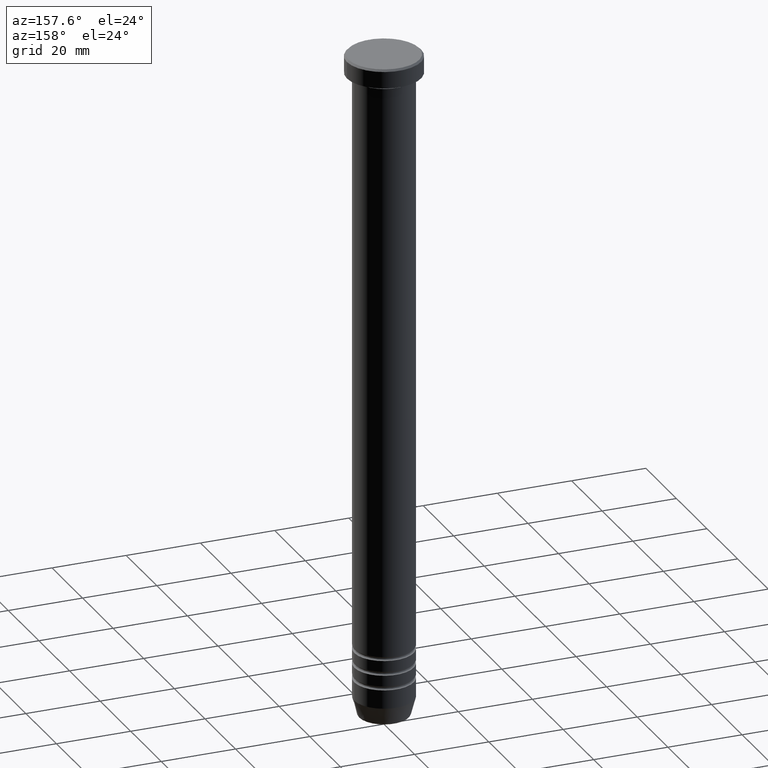
[diagram: clean part render]
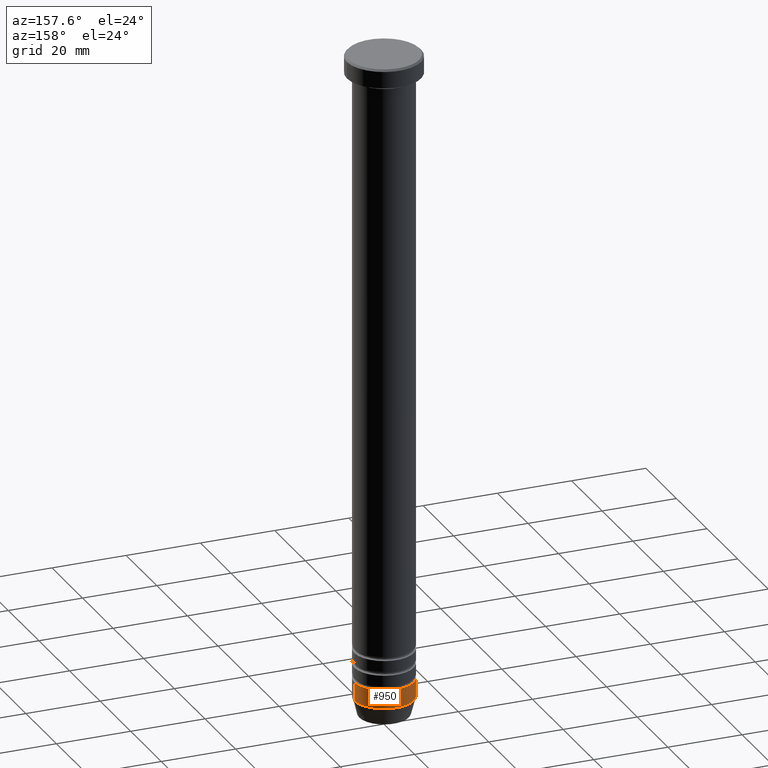
[diagram: same view with one face highlighted and labeled with its STEP entity id]
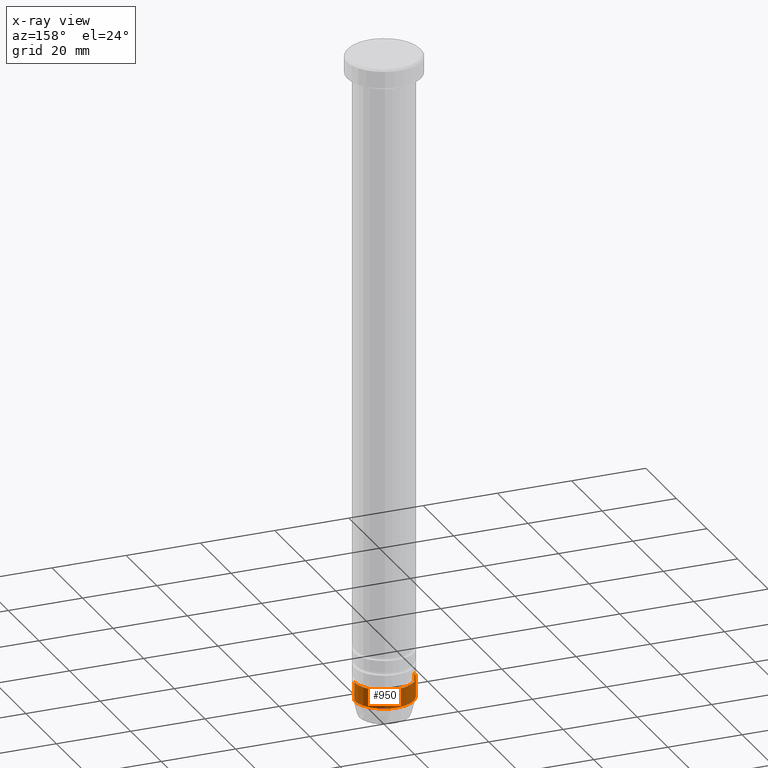
[diagram: x-ray of the same camera — body ghosted, the highlighted face saturated]
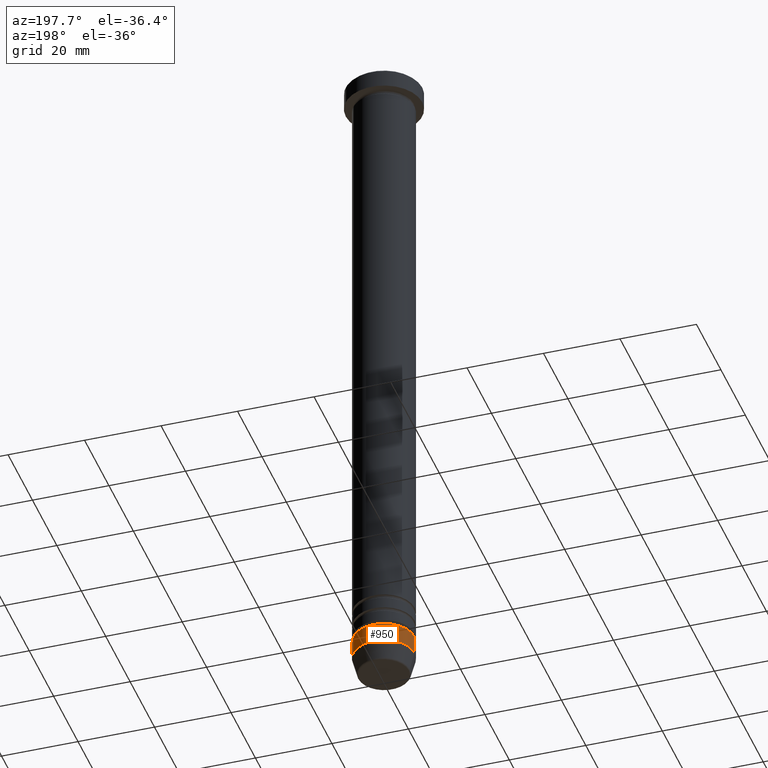
[diagram: same view with one face highlighted and labeled with its STEP entity id]
A machine part, auxiliary view. The second image highlights one B-rep face of the part: STEP entity #950.
The next image is the same camera in x-ray: the body ghosted, the highlighted face saturated — about 0% of this face is hidden behind the body in this view.
A second angle (auxiliary view) of the same face is appended — the face is thin or edge-on in the first view.
In plain terms, the highlighted cylindrical surface (edge-blend (fillet) strip) has radius 8 mm, axis along (-0, -0, 1).
Its self-contained STEP definition (entity closure, byte-faithful):
#17 = AXIS2_PLACEMENT_3D ( 'NONE', #583, #241, #818 ) ;
#26 = ORIENTED_EDGE ( 'NONE', *, *, #489, .T. ) ;
#74 = CIRCLE ( 'NONE', #17, 8.000000000000000000 ) ;
#84 = CYLINDRICAL_SURFACE ( 'NONE', #235, 8.000000000000000000 ) ;
#114 = VERTEX_POINT ( 'NONE', #407 ) ;
#122 = ORIENTED_EDGE ( 'NONE', *, *, #529, .F. ) ;
#151 = DIRECTION ( 'NONE',  ( -0.000000000000000000, -0.000000000000000000, 1.000000000000000000 ) ) ;
#235 = AXIS2_PLACEMENT_3D ( 'NONE', #325, #647, #1055 ) ;
#241 = DIRECTION ( 'NONE',  ( -0.000000000000000000, -0.000000000000000000, 1.000000000000000000 ) ) ;
#243 = CARTESIAN_POINT ( 'NONE',  ( 0.000000000000000000, 0.000000000000000000, -175.0000000000000284 ) ) ;
#278 = ORIENTED_EDGE ( 'NONE', *, *, #516, .F. ) ;
#313 = DIRECTION ( 'NONE',  ( 1.000000000000000000, 0.000000000000000000, 0.000000000000000000 ) ) ;
#325 = CARTESIAN_POINT ( 'NONE',  ( 0.000000000000000000, 0.000000000000000000, 0.000000000000000000 ) ) ;
#404 = VECTOR ( 'NONE', #151, 1000.000000000000000 ) ;
#407 = CARTESIAN_POINT ( 'NONE',  ( 8.000000000000000000, 0.000000000000000000, -175.0000000000000284 ) ) ;
#409 = DIRECTION ( 'NONE',  ( -0.000000000000000000, -0.000000000000000000, 1.000000000000000000 ) ) ;
#431 = CARTESIAN_POINT ( 'NONE',  ( 8.000000000000000000, 0.000000000000000000, -170.0000000000000000 ) ) ;
#445 = VERTEX_POINT ( 'NONE', #1042 ) ;
#489 = EDGE_CURVE ( 'NONE', #840, #445, #805, .T. ) ;
#516 = EDGE_CURVE ( 'NONE', #114, #976, #586, .T. ) ;
#529 = EDGE_CURVE ( 'NONE', #976, #445, #74, .T. ) ;
#571 = AXIS2_PLACEMENT_3D ( 'NONE', #243, #409, #313 ) ;
#583 = CARTESIAN_POINT ( 'NONE',  ( 0.000000000000000000, 0.000000000000000000, -170.0000000000000000 ) ) ;
#586 = LINE ( 'NONE', #649, #714 ) ;
#622 = ORIENTED_EDGE ( 'NONE', *, *, #844, .T. ) ;
#647 = DIRECTION ( 'NONE',  ( -0.000000000000000000, -0.000000000000000000, 1.000000000000000000 ) ) ;
#649 = CARTESIAN_POINT ( 'NONE',  ( 8.000000000000000000, 0.000000000000000000, 0.000000000000000000 ) ) ;
#714 = VECTOR ( 'NONE', #979, 1000.000000000000000 ) ;
#727 = CARTESIAN_POINT ( 'NONE',  ( -8.000000000000000000, 9.797174393178825657E-16, -175.0000000000000284 ) ) ;
#805 = LINE ( 'NONE', #873, #404 ) ;
#806 = FACE_OUTER_BOUND ( 'NONE', #817, .T. ) ;
#817 = EDGE_LOOP ( 'NONE', ( #622, #26, #122, #278 ) ) ;
#818 = DIRECTION ( 'NONE',  ( 1.000000000000000000, 0.000000000000000000, 0.000000000000000000 ) ) ;
#840 = VERTEX_POINT ( 'NONE', #727 ) ;
#844 = EDGE_CURVE ( 'NONE', #114, #840, #1045, .T. ) ;
#873 = CARTESIAN_POINT ( 'NONE',  ( -8.000000000000000000, 9.797174393178825657E-16, 0.000000000000000000 ) ) ;
#950 = ADVANCED_FACE ( 'NONE', ( #806 ), #84, .T. ) ;
#976 = VERTEX_POINT ( 'NONE', #431 ) ;
#979 = DIRECTION ( 'NONE',  ( -0.000000000000000000, -0.000000000000000000, 1.000000000000000000 ) ) ;
#1042 = CARTESIAN_POINT ( 'NONE',  ( -8.000000000000000000, 9.797174393178825657E-16, -170.0000000000000000 ) ) ;
#1045 = CIRCLE ( 'NONE', #571, 8.000000000000000000 ) ;
#1055 = DIRECTION ( 'NONE',  ( 1.000000000000000000, 0.000000000000000000, 0.000000000000000000 ) ) ;